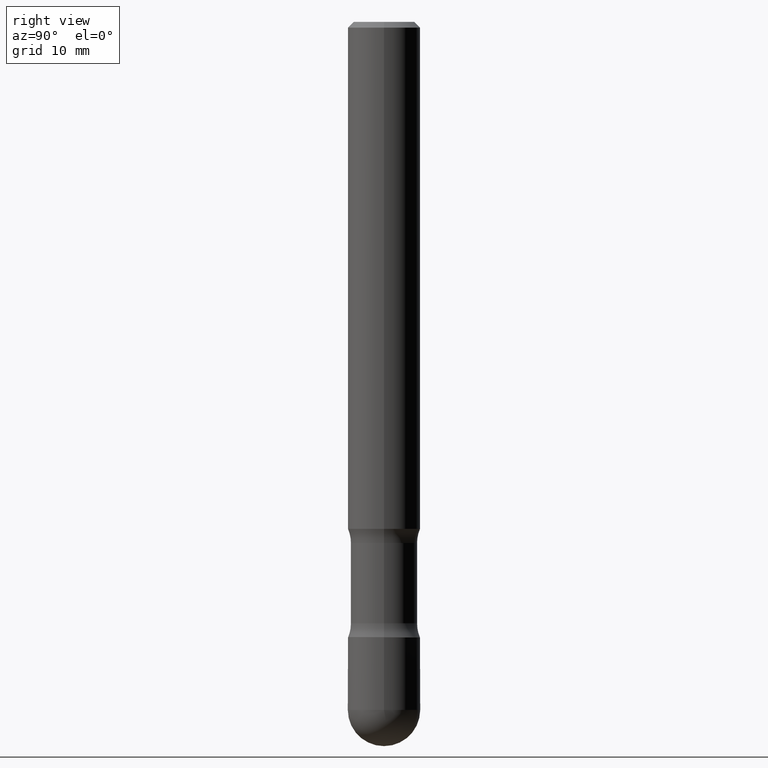
[diagram: clean part render]
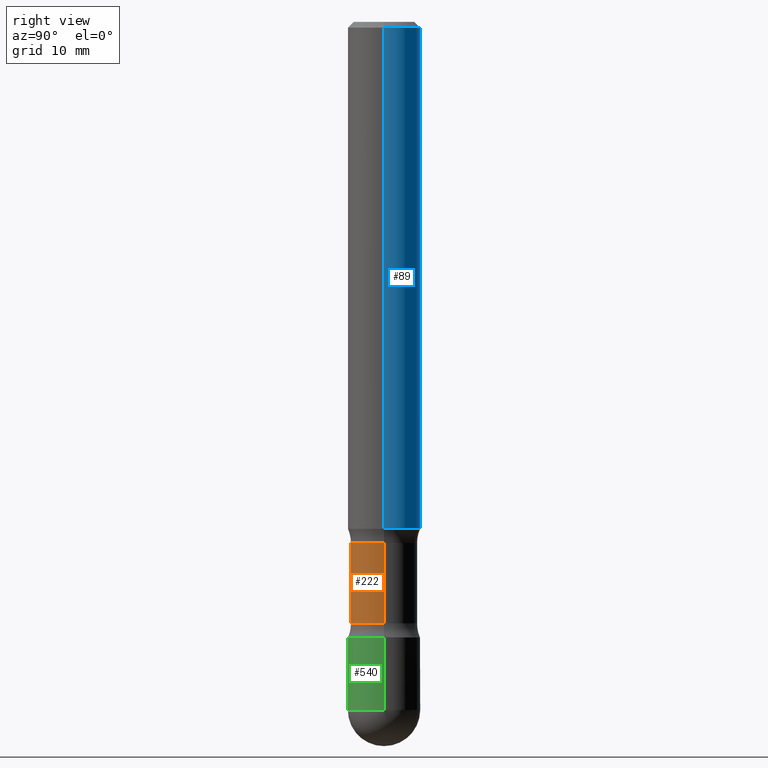
[diagram: same view with three faces highlighted in distinct colors, each labeled with its STEP entity id]
A machine part, right view with three faces highlighted in distinct colors.
Their STEP definitions:

[orange] entity #222 — the highlighted cylindrical surface (edge-blend (fillet) strip) has radius 2.921 mm, axis along (0, -0, -1).
#10 = EDGE_CURVE ( 'NONE', #56, #120, #84, .T. ) ;
#27 = EDGE_CURVE ( 'NONE', #61, #337, #42, .T. ) ;
#32 = EDGE_CURVE ( 'NONE', #56, #61, #101, .T. ) ;
#42 = LINE ( 'NONE', #304, #333 ) ;
#56 = VERTEX_POINT ( 'NONE', #326 ) ;
#61 = VERTEX_POINT ( 'NONE', #452 ) ;
#84 = LINE ( 'NONE', #564, #407 ) ;
#101 = CIRCLE ( 'NONE', #183, 0.1149999999999995609 ) ;
#115 = AXIS2_PLACEMENT_3D ( 'NONE', #422, #168, #447 ) ;
#120 = VERTEX_POINT ( 'NONE', #329 ) ;
#141 = CIRCLE ( 'NONE', #264, 0.1149999999999994499 ) ;
#143 = CARTESIAN_POINT ( 'NONE',  ( -0.1149999999999994499, -6.445310182575463392E-15, -2.076010205144336318 ) ) ;
#168 = DIRECTION ( 'NONE',  ( 2.445468806185136597E-29, -3.491481338843145583E-15, -1.000000000000000000 ) ) ;
#183 = AXIS2_PLACEMENT_3D ( 'NONE', #448, #413, #555 ) ;
#217 = DIRECTION ( 'NONE',  ( 2.445468806185136597E-29, -3.491481338843145583E-15, -1.000000000000000000 ) ) ;
#222 = ADVANCED_FACE ( 'NONE', ( #375 ), #253, .T. ) ;
#245 = ORIENTED_EDGE ( 'NONE', *, *, #27, .T. ) ;
#253 = CYLINDRICAL_SURFACE ( 'NONE', #115, 0.1149999999999995054 ) ;
#259 = DIRECTION ( 'NONE',  ( 2.445468806185136877E-29, -3.491481338843145188E-15, -1.000000000000000000 ) ) ;
#264 = AXIS2_PLACEMENT_3D ( 'NONE', #516, #217, #265 ) ;
#265 = DIRECTION ( 'NONE',  ( -1.000000000000000000, 6.982962677686264344E-15, 0.000000000000000000 ) ) ;
#271 = EDGE_CURVE ( 'NONE', #120, #337, #141, .T. ) ;
#304 = CARTESIAN_POINT ( 'NONE',  ( -0.1149999999999995054, -6.616357137107765949E-15, -2.125000000000000000 ) ) ;
#320 = ORIENTED_EDGE ( 'NONE', *, *, #32, .T. ) ;
#326 = CARTESIAN_POINT ( 'NONE',  ( 0.1149999999999995609, -7.018875579974243082E-15, -1.798989794855664126 ) ) ;
#329 = CARTESIAN_POINT ( 'NONE',  ( 0.1149999999999994499, -7.553702363752317106E-15, -2.076010205144336318 ) ) ;
#333 = VECTOR ( 'NONE', #476, 39.37007874015748143 ) ;
#337 = VERTEX_POINT ( 'NONE', #143 ) ;
#375 = FACE_OUTER_BOUND ( 'NONE', #553, .T. ) ;
#407 = VECTOR ( 'NONE', #259, 39.37007874015748143 ) ;
#413 = DIRECTION ( 'NONE',  ( 2.445468806185136597E-29, -3.491481338843145583E-15, -1.000000000000000000 ) ) ;
#420 = ORIENTED_EDGE ( 'NONE', *, *, #271, .F. ) ;
#422 = CARTESIAN_POINT ( 'NONE',  ( 5.196621213143415268E-29, -7.419397845041683624E-15, -2.125000000000000000 ) ) ;
#446 = ORIENTED_EDGE ( 'NONE', *, *, #10, .F. ) ;
#447 = DIRECTION ( 'NONE',  ( -1.000000000000000000, 6.982962677686269866E-15, 0.000000000000000000 ) ) ;
#448 = CARTESIAN_POINT ( 'NONE',  ( 4.399373425964925266E-29, -6.281139297507810384E-15, -1.798989794855664126 ) ) ;
#452 = CARTESIAN_POINT ( 'NONE',  ( -0.1149999999999995609, -5.478098589573892710E-15, -1.798989794855664126 ) ) ;
#476 = DIRECTION ( 'NONE',  ( 2.445468806185136877E-29, -3.491481338843145188E-15, -1.000000000000000000 ) ) ;
#516 = CARTESIAN_POINT ( 'NONE',  ( 5.076818198002480167E-29, -7.248350890509379489E-15, -2.076010205144336318 ) ) ;
#553 = EDGE_LOOP ( 'NONE', ( #446, #320, #245, #420 ) ) ;
#555 = DIRECTION ( 'NONE',  ( -1.000000000000000000, 6.982962677686266711E-15, 0.000000000000000000 ) ) ;
#564 = CARTESIAN_POINT ( 'NONE',  ( 0.1149999999999995054, -8.208355114785406976E-15, -2.125000000000000000 ) ) ;

[blue] entity #89 — the highlighted cylindrical surface (edge-blend (fillet) strip) has radius 3.175 mm, axis along (0, -0, -1).
#26 = VERTEX_POINT ( 'NONE', #134 ) ;
#33 = VECTOR ( 'NONE', #349, 39.37007874015748143 ) ;
#45 = CARTESIAN_POINT ( 'NONE',  ( 0.1249999999999999584, -3.947523234597624247E-15, -1.750000000000001776 ) ) ;
#62 = ORIENTED_EDGE ( 'NONE', *, *, #247, .F. ) ;
#67 = EDGE_CURVE ( 'NONE', #26, #535, #149, .T. ) ;
#70 = EDGE_LOOP ( 'NONE', ( #541, #285, #62, #393 ) ) ;
#80 = DIRECTION ( 'NONE',  ( -1.000000000000000000, 6.982962677686266711E-15, 0.000000000000000000 ) ) ;
#89 = ADVANCED_FACE ( 'NONE', ( #533 ), #145, .T. ) ;
#134 = CARTESIAN_POINT ( 'NONE',  ( -0.1249999999999996253, 8.030407079339175754E-16, -0.02000000000000005940 ) ) ;
#138 = LINE ( 'NONE', #220, #193 ) ;
#145 = CYLINDRICAL_SURFACE ( 'NONE', #548, 0.1249999999999997918 ) ;
#149 = CIRCLE ( 'NONE', #405, 0.1249999999999996253 ) ;
#193 = VECTOR ( 'NONE', #442, 39.37007874015748143 ) ;
#220 = CARTESIAN_POINT ( 'NONE',  ( 0.1249999999999997918, -8.276960094763123491E-15, -2.125000000000000000 ) ) ;
#241 = CARTESIAN_POINT ( 'NONE',  ( 4.890937612370288047E-31, -6.982962677686311331E-17, -0.02000000000000005940 ) ) ;
#247 = EDGE_CURVE ( 'NONE', #400, #389, #419, .T. ) ;
#263 = LINE ( 'NONE', #382, #33 ) ;
#267 = DIRECTION ( 'NONE',  ( 2.445468806185136597E-29, -3.491481338843145583E-15, -1.000000000000000000 ) ) ;
#285 = ORIENTED_EDGE ( 'NONE', *, *, #399, .T. ) ;
#292 = CARTESIAN_POINT ( 'NONE',  ( 0.1249999999999996253, -9.273918764983019825E-16, -0.02000000000000005940 ) ) ;
#318 = DIRECTION ( 'NONE',  ( 2.445468806185136597E-29, -3.491481338843145583E-15, -1.000000000000000000 ) ) ;
#332 = EDGE_CURVE ( 'NONE', #26, #400, #263, .T. ) ;
#349 = DIRECTION ( 'NONE',  ( 2.445468806185136877E-29, -3.491481338843145188E-15, -1.000000000000000000 ) ) ;
#373 = DIRECTION ( 'NONE',  ( -1.000000000000000000, 6.982962677686266711E-15, 0.000000000000000000 ) ) ;
#382 = CARTESIAN_POINT ( 'NONE',  ( -0.1249999999999997918, -6.546527510330901862E-15, -2.125000000000000000 ) ) ;
#388 = DIRECTION ( 'NONE',  ( -1.000000000000000000, 6.982962677686265133E-15, 0.000000000000000000 ) ) ;
#389 = VERTEX_POINT ( 'NONE', #45 ) ;
#393 = ORIENTED_EDGE ( 'NONE', *, *, #332, .F. ) ;
#399 = EDGE_CURVE ( 'NONE', #535, #389, #138, .T. ) ;
#400 = VERTEX_POINT ( 'NONE', #480 ) ;
#405 = AXIS2_PLACEMENT_3D ( 'NONE', #241, #318, #80 ) ;
#419 = CIRCLE ( 'NONE', #502, 0.1249999999999999584 ) ;
#442 = DIRECTION ( 'NONE',  ( 2.445468806185136877E-29, -3.491481338843145188E-15, -1.000000000000000000 ) ) ;
#475 = CARTESIAN_POINT ( 'NONE',  ( 4.279570410823993529E-29, -6.110092342975510982E-15, -1.750000000000001776 ) ) ;
#480 = CARTESIAN_POINT ( 'NONE',  ( -0.1249999999999999584, -5.237222008264728432E-15, -1.750000000000001776 ) ) ;
#489 = CARTESIAN_POINT ( 'NONE',  ( 5.196621213143415268E-29, -7.419397845041683624E-15, -2.125000000000000000 ) ) ;
#502 = AXIS2_PLACEMENT_3D ( 'NONE', #475, #267, #388 ) ;
#509 = DIRECTION ( 'NONE',  ( 2.445468806185136597E-29, -3.491481338843145583E-15, -1.000000000000000000 ) ) ;
#533 = FACE_OUTER_BOUND ( 'NONE', #70, .T. ) ;
#535 = VERTEX_POINT ( 'NONE', #292 ) ;
#541 = ORIENTED_EDGE ( 'NONE', *, *, #67, .T. ) ;
#548 = AXIS2_PLACEMENT_3D ( 'NONE', #489, #509, #373 ) ;

[green] entity #540 — the highlighted cylindrical surface (edge-blend (fillet) strip) has radius 3.175 mm, axis along (-0, 0, 1).
#5 = CARTESIAN_POINT ( 'NONE',  ( -0.1249999999999995559, -6.967654592696955583E-15, -2.125000000000000000 ) ) ;
#6 = EDGE_CURVE ( 'NONE', #159, #195, #90, .T. ) ;
#8 = DIRECTION ( 'NONE',  ( 1.000000000000000000, -6.982962677686264344E-15, 0.000000000000000000 ) ) ;
#14 = FACE_OUTER_BOUND ( 'NONE', #119, .T. ) ;
#38 = CIRCLE ( 'NONE', #203, 0.1249999999999995559 ) ;
#44 = CARTESIAN_POINT ( 'NONE',  ( 0.1249999999999995559, -8.292268179752463807E-15, -2.125000000000000000 ) ) ;
#60 = CIRCLE ( 'NONE', #537, 0.1249999999999995559 ) ;
#90 = CIRCLE ( 'NONE', #286, 0.1249999999999995559 ) ;
#94 = EDGE_CURVE ( 'NONE', #293, #159, #403, .T. ) ;
#103 = DIRECTION ( 'NONE',  ( 1.000000000000000000, -6.982962677686265922E-15, 4.876176775795935793E-29 ) ) ;
#112 = ORIENTED_EDGE ( 'NONE', *, *, #127, .T. ) ;
#114 = CARTESIAN_POINT ( 'NONE',  ( 0.1249999999999995559, -8.728703347107801834E-16, 6.095220969744898021E-30 ) ) ;
#117 = ORIENTED_EDGE ( 'NONE', *, *, #160, .T. ) ;
#119 = EDGE_LOOP ( 'NONE', ( #260, #196, #117, #112, #211 ) ) ;
#127 = EDGE_CURVE ( 'NONE', #254, #195, #498, .T. ) ;
#129 = AXIS2_PLACEMENT_3D ( 'NONE', #246, #361, #103 ) ;
#159 = VERTEX_POINT ( 'NONE', #5 ) ;
#160 = EDGE_CURVE ( 'NONE', #187, #254, #38, .T. ) ;
#180 = CARTESIAN_POINT ( 'NONE',  ( -8.728703347107256534E-16, -0.1250000000000083544, -2.374999999999999556 ) ) ;
#187 = VERTEX_POINT ( 'NONE', #180 ) ;
#190 = DIRECTION ( 'NONE',  ( -2.445468806185136877E-29, 3.491481338843145188E-15, 1.000000000000000000 ) ) ;
#195 = VERTEX_POINT ( 'NONE', #44 ) ;
#196 = ORIENTED_EDGE ( 'NONE', *, *, #497, .T. ) ;
#203 = AXIS2_PLACEMENT_3D ( 'NONE', #351, #266, #8 ) ;
#211 = ORIENTED_EDGE ( 'NONE', *, *, #6, .F. ) ;
#221 = DIRECTION ( 'NONE',  ( -2.445468806185136597E-29, 3.491481338843145583E-15, 1.000000000000000000 ) ) ;
#246 = CARTESIAN_POINT ( 'NONE',  ( 0.000000000000000000, 0.000000000000000000, 0.000000000000000000 ) ) ;
#254 = VERTEX_POINT ( 'NONE', #436 ) ;
#260 = ORIENTED_EDGE ( 'NONE', *, *, #94, .F. ) ;
#266 = DIRECTION ( 'NONE',  ( -2.445468806185136597E-29, 3.491481338843145583E-15, 1.000000000000000000 ) ) ;
#286 = AXIS2_PLACEMENT_3D ( 'NONE', #368, #221, #527 ) ;
#293 = VERTEX_POINT ( 'NONE', #435 ) ;
#351 = CARTESIAN_POINT ( 'NONE',  ( 5.807988414689700538E-29, -8.292268179752471696E-15, -2.375000000000000000 ) ) ;
#358 = CARTESIAN_POINT ( 'NONE',  ( 5.807988414689700538E-29, -8.292268179752471696E-15, -2.375000000000000000 ) ) ;
#361 = DIRECTION ( 'NONE',  ( -2.445468806185136597E-29, 3.491481338843145583E-15, 1.000000000000000000 ) ) ;
#368 = CARTESIAN_POINT ( 'NONE',  ( 5.196621213143415268E-29, -7.419397845041683624E-15, -2.125000000000000000 ) ) ;
#401 = CARTESIAN_POINT ( 'NONE',  ( -0.1249999999999995559, 8.881784197001220769E-16, -6.148668862818609806E-30 ) ) ;
#403 = LINE ( 'NONE', #401, #440 ) ;
#435 = CARTESIAN_POINT ( 'NONE',  ( -0.1249999999999995559, -6.967654592696956371E-15, -2.375000000000000000 ) ) ;
#436 = CARTESIAN_POINT ( 'NONE',  ( 0.1249999999999995559, -8.728703347107858632E-15, -2.375000000000000000 ) ) ;
#440 = VECTOR ( 'NONE', #190, 39.37007874015748143 ) ;
#445 = DIRECTION ( 'NONE',  ( -2.445468806185136597E-29, 3.491481338843145583E-15, 1.000000000000000000 ) ) ;
#490 = CYLINDRICAL_SURFACE ( 'NONE', #129, 0.1249999999999995559 ) ;
#497 = EDGE_CURVE ( 'NONE', #293, #187, #60, .T. ) ;
#498 = LINE ( 'NONE', #114, #513 ) ;
#500 = DIRECTION ( 'NONE',  ( 1.000000000000000000, -6.982962677686264344E-15, 0.000000000000000000 ) ) ;
#513 = VECTOR ( 'NONE', #551, 39.37007874015748143 ) ;
#527 = DIRECTION ( 'NONE',  ( 1.000000000000000000, -6.982962677686264344E-15, 0.000000000000000000 ) ) ;
#537 = AXIS2_PLACEMENT_3D ( 'NONE', #358, #445, #500 ) ;
#540 = ADVANCED_FACE ( 'NONE', ( #14 ), #490, .T. ) ;
#551 = DIRECTION ( 'NONE',  ( -2.445468806185136877E-29, 3.491481338843145188E-15, 1.000000000000000000 ) ) ;